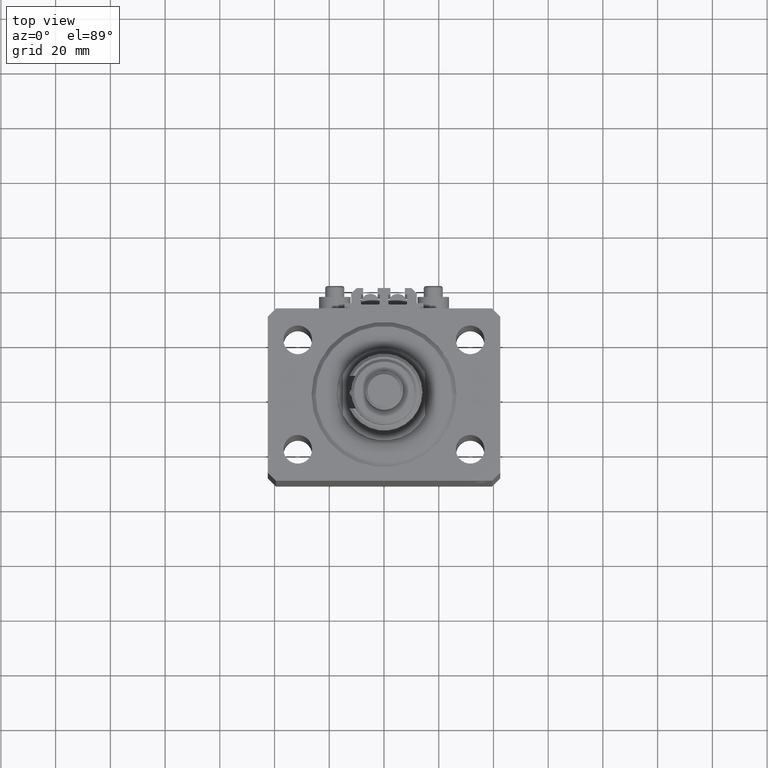
[diagram: clean part render]
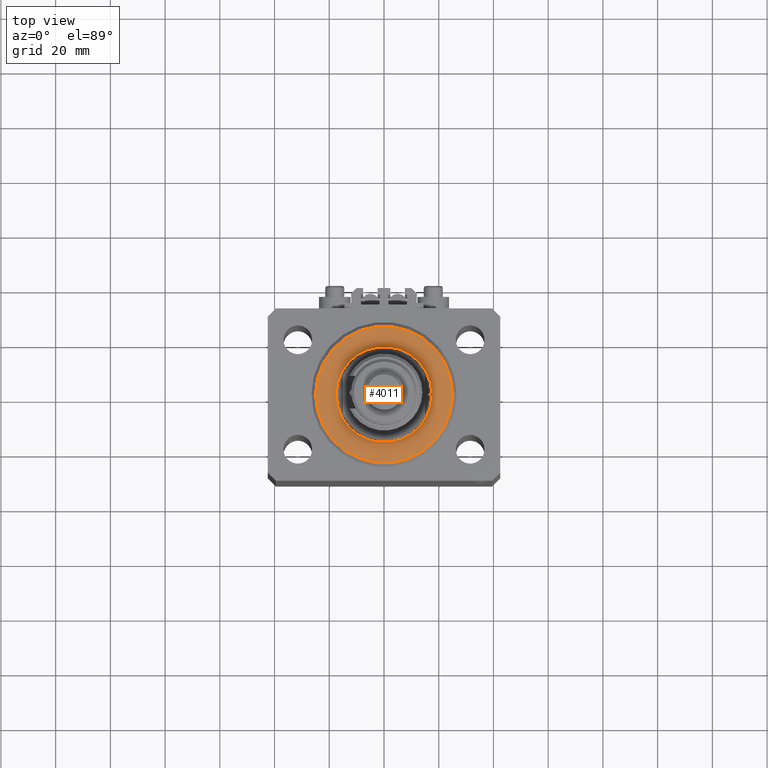
[diagram: same view with one face highlighted and labeled with its STEP entity id]
A machine part, top view. The second image highlights one B-rep face of the part: STEP entity #4011.
In plain terms, the highlighted planar face has unit normal (0, 0, -1).
Its self-contained STEP definition (entity closure, byte-faithful):
#2196 = CARTESIAN_POINT ( 'NONE',  ( 17.50000000000000000, 0.000000000000000000, 2.168404344971008868E-16 ) ) ;
#2992 = DIRECTION ( 'NONE',  ( 1.000000000000000000, 0.000000000000000000, 0.000000000000000000 ) ) ;
#4011 = ADVANCED_FACE ( 'NONE', ( #24600, #32064 ), #11985, .F. ) ;
#4795 = CIRCLE ( 'NONE', #7273, 24.99999999999998224 ) ;
#6992 = CARTESIAN_POINT ( 'NONE',  ( -24.99999999999998224, 3.153465507804433615E-15, 0.000000000000000000 ) ) ;
#7273 = AXIS2_PLACEMENT_3D ( 'NONE', #13098, #32669, #24184 ) ;
#7996 = ORIENTED_EDGE ( 'NONE', *, *, #9666, .T. ) ;
#8326 = EDGE_CURVE ( 'NONE', #45013, #40222, #44290, .T. ) ;
#8935 = CIRCLE ( 'NONE', #31953, 17.50000000000000000 ) ;
#9666 = EDGE_CURVE ( 'NONE', #40222, #45013, #8935, .T. ) ;
#11218 = EDGE_LOOP ( 'NONE', ( #31214, #28530 ) ) ;
#11481 = VERTEX_POINT ( 'NONE', #6992 ) ;
#11985 = PLANE ( 'NONE',  #11991 ) ;
#11991 = AXIS2_PLACEMENT_3D ( 'NONE', #43429, #12490, #28198 ) ;
#12490 = DIRECTION ( 'NONE',  ( 0.000000000000000000, 0.000000000000000000, 1.000000000000000000 ) ) ;
#12810 = EDGE_CURVE ( 'NONE', #11481, #32989, #4795, .T. ) ;
#13098 = CARTESIAN_POINT ( 'NONE',  ( 0.000000000000000000, 0.000000000000000000, 0.000000000000000000 ) ) ;
#13475 = EDGE_LOOP ( 'NONE', ( #7996, #47507 ) ) ;
#15485 = AXIS2_PLACEMENT_3D ( 'NONE', #24937, #44776, #2992 ) ;
#17195 = CARTESIAN_POINT ( 'NONE',  ( 0.000000000000000000, 0.000000000000000000, 0.000000000000000000 ) ) ;
#17540 = CIRCLE ( 'NONE', #38950, 24.99999999999998224 ) ;
#18370 = CARTESIAN_POINT ( 'NONE',  ( 24.99999999999998224, 0.000000000000000000, 0.000000000000000000 ) ) ;
#20065 = CARTESIAN_POINT ( 'NONE',  ( -17.50000000000000000, 2.143131898507868643E-15, 2.168404344971008868E-16 ) ) ;
#24184 = DIRECTION ( 'NONE',  ( 1.000000000000000000, 0.000000000000000000, 0.000000000000000000 ) ) ;
#24600 = FACE_BOUND ( 'NONE', #13475, .T. ) ;
#24937 = CARTESIAN_POINT ( 'NONE',  ( 0.000000000000000000, 0.000000000000000000, 0.000000000000000000 ) ) ;
#28198 = DIRECTION ( 'NONE',  ( 1.000000000000000000, 0.000000000000000000, -0.000000000000000000 ) ) ;
#28530 = ORIENTED_EDGE ( 'NONE', *, *, #12810, .T. ) ;
#31214 = ORIENTED_EDGE ( 'NONE', *, *, #46427, .T. ) ;
#31953 = AXIS2_PLACEMENT_3D ( 'NONE', #37660, #49281, #34562 ) ;
#32064 = FACE_OUTER_BOUND ( 'NONE', #11218, .T. ) ;
#32669 = DIRECTION ( 'NONE',  ( -0.000000000000000000, -0.000000000000000000, -1.000000000000000000 ) ) ;
#32907 = DIRECTION ( 'NONE',  ( 1.000000000000000000, 0.000000000000000000, 0.000000000000000000 ) ) ;
#32989 = VERTEX_POINT ( 'NONE', #18370 ) ;
#34562 = DIRECTION ( 'NONE',  ( 1.000000000000000000, 0.000000000000000000, 0.000000000000000000 ) ) ;
#37660 = CARTESIAN_POINT ( 'NONE',  ( 0.000000000000000000, 0.000000000000000000, 0.000000000000000000 ) ) ;
#38950 = AXIS2_PLACEMENT_3D ( 'NONE', #17195, #45525, #32907 ) ;
#40222 = VERTEX_POINT ( 'NONE', #2196 ) ;
#43429 = CARTESIAN_POINT ( 'NONE',  ( 0.000000000000000000, 0.000000000000000000, 0.000000000000000000 ) ) ;
#44290 = CIRCLE ( 'NONE', #15485, 17.50000000000000000 ) ;
#44776 = DIRECTION ( 'NONE',  ( 0.000000000000000000, 0.000000000000000000, 1.000000000000000000 ) ) ;
#45013 = VERTEX_POINT ( 'NONE', #20065 ) ;
#45525 = DIRECTION ( 'NONE',  ( -0.000000000000000000, -0.000000000000000000, -1.000000000000000000 ) ) ;
#46427 = EDGE_CURVE ( 'NONE', #32989, #11481, #17540, .T. ) ;
#47507 = ORIENTED_EDGE ( 'NONE', *, *, #8326, .T. ) ;
#49281 = DIRECTION ( 'NONE',  ( 0.000000000000000000, 0.000000000000000000, 1.000000000000000000 ) ) ;